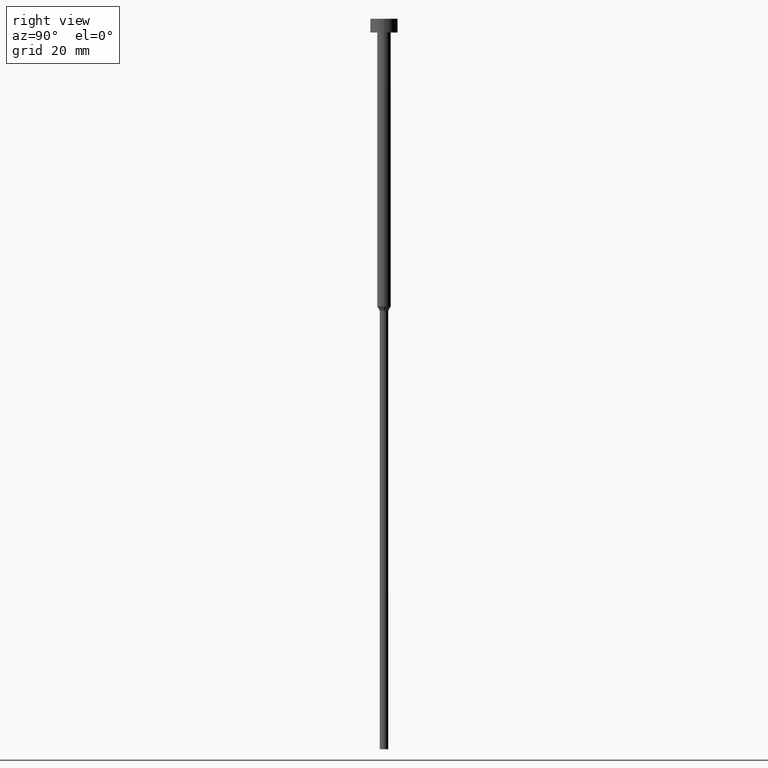
[diagram: clean part render]
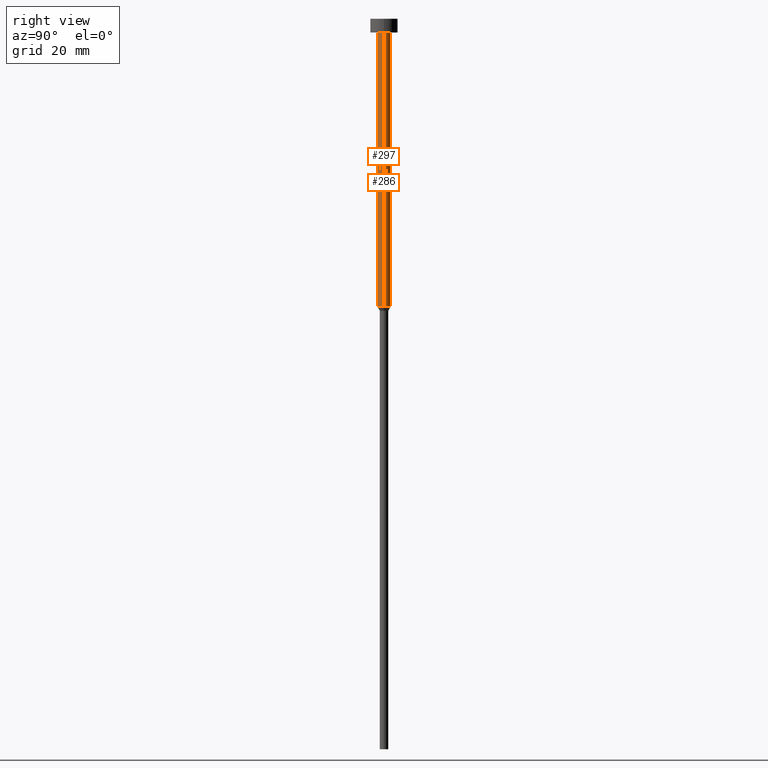
[diagram: same view with one multi-face feature highlighted, each face labeled with its STEP entity id]
A machine part, right view. The highlighted faces form ONE feature: a constant-radius fillet chain: 2 tangent blend faces with common blend radius 1.5 mm. The faces share edges in the B-rep.
Their STEP definitions:
[1] entity #286 (Cylinder):
#5 = EDGE_LOOP ( 'NONE', ( #285, #322, #126, #305 ) ) ;
#18 = DIRECTION ( 'NONE',  ( -0.000000000000000000, -0.000000000000000000, 1.000000000000000000 ) ) ;
#25 = CARTESIAN_POINT ( 'NONE',  ( 1.500000000000000000, 0.000000000000000000, -3.000000000000000888 ) ) ;
#47 = LINE ( 'NONE', #152, #189 ) ;
#54 = VERTEX_POINT ( 'NONE', #257 ) ;
#59 = VERTEX_POINT ( 'NONE', #168 ) ;
#70 = AXIS2_PLACEMENT_3D ( 'NONE', #296, #179, #290 ) ;
#73 = DIRECTION ( 'NONE',  ( 1.000000000000000000, 0.000000000000000000, 0.000000000000000000 ) ) ;
#113 = AXIS2_PLACEMENT_3D ( 'NONE', #344, #206, #73 ) ;
#123 = DIRECTION ( 'NONE',  ( 1.000000000000000000, 0.000000000000000000, 0.000000000000000000 ) ) ;
#126 = ORIENTED_EDGE ( 'NONE', *, *, #234, .F. ) ;
#139 = CIRCLE ( 'NONE', #148, 1.500000000000000000 ) ;
#148 = AXIS2_PLACEMENT_3D ( 'NONE', #263, #18, #123 ) ;
#152 = CARTESIAN_POINT ( 'NONE',  ( -1.500000000000000000, 1.836970198721029934E-16, 0.000000000000000000 ) ) ;
#160 = DIRECTION ( 'NONE',  ( -0.000000000000000000, -0.000000000000000000, 1.000000000000000000 ) ) ;
#162 = VERTEX_POINT ( 'NONE', #319 ) ;
#168 = CARTESIAN_POINT ( 'NONE',  ( -1.500000000000000000, 1.836970198721029934E-16, -3.000000000000000888 ) ) ;
#179 = DIRECTION ( 'NONE',  ( -0.000000000000000000, -0.000000000000000000, 1.000000000000000000 ) ) ;
#189 = VECTOR ( 'NONE', #265, 1000.000000000000000 ) ;
#206 = DIRECTION ( 'NONE',  ( -0.000000000000000000, -0.000000000000000000, 1.000000000000000000 ) ) ;
#215 = LINE ( 'NONE', #275, #317 ) ;
#234 = EDGE_CURVE ( 'NONE', #340, #59, #284, .T. ) ;
#256 = EDGE_CURVE ( 'NONE', #162, #54, #139, .T. ) ;
#257 = CARTESIAN_POINT ( 'NONE',  ( -1.500000000000000000, 1.836970198721029934E-16, -63.00000000000000000 ) ) ;
#263 = CARTESIAN_POINT ( 'NONE',  ( 0.000000000000000000, 0.000000000000000000, -63.00000000000000000 ) ) ;
#265 = DIRECTION ( 'NONE',  ( -0.000000000000000000, -0.000000000000000000, 1.000000000000000000 ) ) ;
#275 = CARTESIAN_POINT ( 'NONE',  ( 1.500000000000000000, 0.000000000000000000, 0.000000000000000000 ) ) ;
#284 = CIRCLE ( 'NONE', #70, 1.500000000000000000 ) ;
#285 = ORIENTED_EDGE ( 'NONE', *, *, #256, .T. ) ;
#286 = ADVANCED_FACE ( 'NONE', ( #342 ), #316, .T. ) ;
#290 = DIRECTION ( 'NONE',  ( 1.000000000000000000, 0.000000000000000000, 0.000000000000000000 ) ) ;
#293 = EDGE_CURVE ( 'NONE', #54, #59, #47, .T. ) ;
#296 = CARTESIAN_POINT ( 'NONE',  ( 0.000000000000000000, 0.000000000000000000, -3.000000000000000888 ) ) ;
#301 = EDGE_CURVE ( 'NONE', #162, #340, #215, .T. ) ;
#305 = ORIENTED_EDGE ( 'NONE', *, *, #301, .F. ) ;
#316 = CYLINDRICAL_SURFACE ( 'NONE', #113, 1.500000000000000000 ) ;
#317 = VECTOR ( 'NONE', #160, 1000.000000000000000 ) ;
#319 = CARTESIAN_POINT ( 'NONE',  ( 1.500000000000000000, 0.000000000000000000, -63.00000000000000000 ) ) ;
#322 = ORIENTED_EDGE ( 'NONE', *, *, #293, .T. ) ;
#340 = VERTEX_POINT ( 'NONE', #25 ) ;
#342 = FACE_OUTER_BOUND ( 'NONE', #5, .T. ) ;
#344 = CARTESIAN_POINT ( 'NONE',  ( 0.000000000000000000, 0.000000000000000000, 0.000000000000000000 ) ) ;
[2] entity #297 (Cylinder):
#25 = CARTESIAN_POINT ( 'NONE',  ( 1.500000000000000000, 0.000000000000000000, -3.000000000000000888 ) ) ;
#35 = AXIS2_PLACEMENT_3D ( 'NONE', #325, #242, #53 ) ;
#47 = LINE ( 'NONE', #152, #189 ) ;
#53 = DIRECTION ( 'NONE',  ( 1.000000000000000000, 0.000000000000000000, 0.000000000000000000 ) ) ;
#54 = VERTEX_POINT ( 'NONE', #257 ) ;
#59 = VERTEX_POINT ( 'NONE', #168 ) ;
#98 = DIRECTION ( 'NONE',  ( 1.000000000000000000, 0.000000000000000000, 0.000000000000000000 ) ) ;
#105 = CARTESIAN_POINT ( 'NONE',  ( 0.000000000000000000, 0.000000000000000000, -63.00000000000000000 ) ) ;
#108 = ORIENTED_EDGE ( 'NONE', *, *, #293, .F. ) ;
#128 = DIRECTION ( 'NONE',  ( -0.000000000000000000, -0.000000000000000000, 1.000000000000000000 ) ) ;
#147 = CARTESIAN_POINT ( 'NONE',  ( 0.000000000000000000, 0.000000000000000000, -3.000000000000000888 ) ) ;
#149 = AXIS2_PLACEMENT_3D ( 'NONE', #105, #128, #98 ) ;
#152 = CARTESIAN_POINT ( 'NONE',  ( -1.500000000000000000, 1.836970198721029934E-16, 0.000000000000000000 ) ) ;
#157 = EDGE_CURVE ( 'NONE', #54, #162, #260, .T. ) ;
#160 = DIRECTION ( 'NONE',  ( -0.000000000000000000, -0.000000000000000000, 1.000000000000000000 ) ) ;
#162 = VERTEX_POINT ( 'NONE', #319 ) ;
#166 = EDGE_LOOP ( 'NONE', ( #108, #211, #349, #244 ) ) ;
#168 = CARTESIAN_POINT ( 'NONE',  ( -1.500000000000000000, 1.836970198721029934E-16, -3.000000000000000888 ) ) ;
#171 = CIRCLE ( 'NONE', #345, 1.500000000000000000 ) ;
#189 = VECTOR ( 'NONE', #265, 1000.000000000000000 ) ;
#211 = ORIENTED_EDGE ( 'NONE', *, *, #157, .T. ) ;
#215 = LINE ( 'NONE', #275, #317 ) ;
#242 = DIRECTION ( 'NONE',  ( -0.000000000000000000, -0.000000000000000000, 1.000000000000000000 ) ) ;
#244 = ORIENTED_EDGE ( 'NONE', *, *, #276, .F. ) ;
#257 = CARTESIAN_POINT ( 'NONE',  ( -1.500000000000000000, 1.836970198721029934E-16, -63.00000000000000000 ) ) ;
#260 = CIRCLE ( 'NONE', #149, 1.500000000000000000 ) ;
#261 = DIRECTION ( 'NONE',  ( 1.000000000000000000, 0.000000000000000000, 0.000000000000000000 ) ) ;
#265 = DIRECTION ( 'NONE',  ( -0.000000000000000000, -0.000000000000000000, 1.000000000000000000 ) ) ;
#271 = FACE_OUTER_BOUND ( 'NONE', #166, .T. ) ;
#275 = CARTESIAN_POINT ( 'NONE',  ( 1.500000000000000000, 0.000000000000000000, 0.000000000000000000 ) ) ;
#276 = EDGE_CURVE ( 'NONE', #59, #340, #171, .T. ) ;
#293 = EDGE_CURVE ( 'NONE', #54, #59, #47, .T. ) ;
#294 = DIRECTION ( 'NONE',  ( -0.000000000000000000, -0.000000000000000000, 1.000000000000000000 ) ) ;
#297 = ADVANCED_FACE ( 'NONE', ( #271 ), #355, .T. ) ;
#301 = EDGE_CURVE ( 'NONE', #162, #340, #215, .T. ) ;
#317 = VECTOR ( 'NONE', #160, 1000.000000000000000 ) ;
#319 = CARTESIAN_POINT ( 'NONE',  ( 1.500000000000000000, 0.000000000000000000, -63.00000000000000000 ) ) ;
#325 = CARTESIAN_POINT ( 'NONE',  ( 0.000000000000000000, 0.000000000000000000, 0.000000000000000000 ) ) ;
#340 = VERTEX_POINT ( 'NONE', #25 ) ;
#345 = AXIS2_PLACEMENT_3D ( 'NONE', #147, #294, #261 ) ;
#349 = ORIENTED_EDGE ( 'NONE', *, *, #301, .T. ) ;
#355 = CYLINDRICAL_SURFACE ( 'NONE', #35, 1.500000000000000000 ) ;